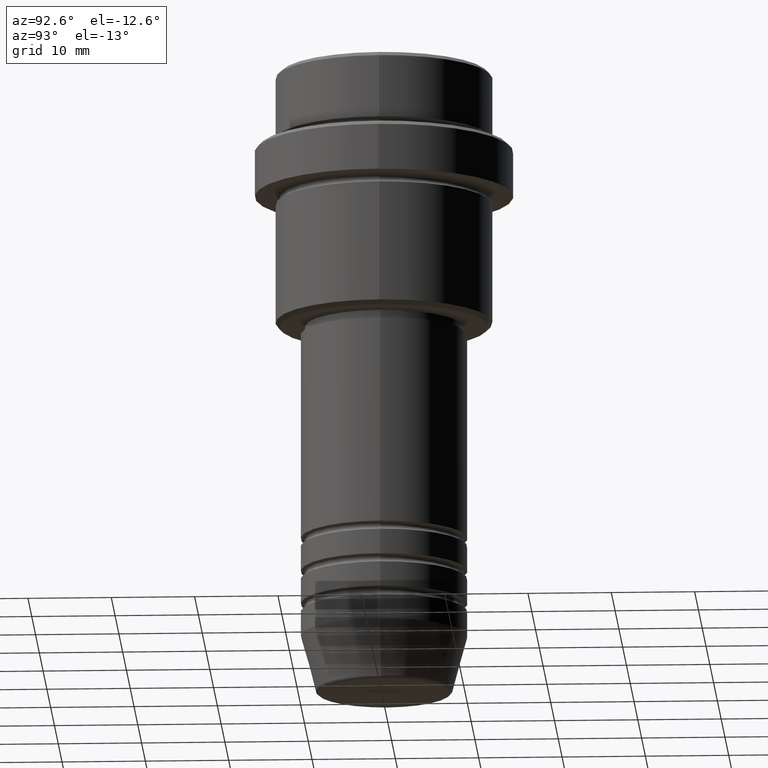
[diagram: clean part render]
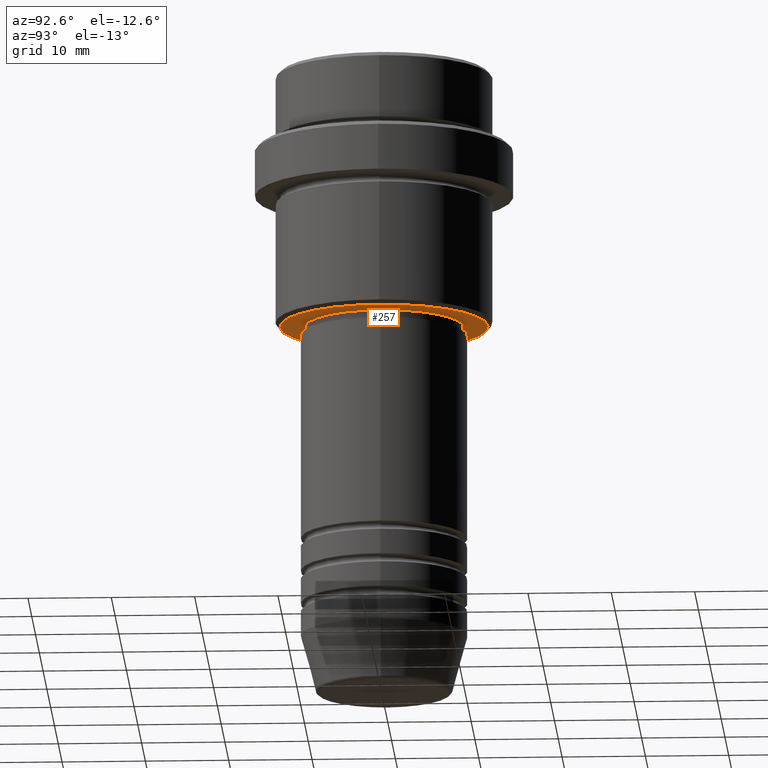
[diagram: same view with one face highlighted and labeled with its STEP entity id]
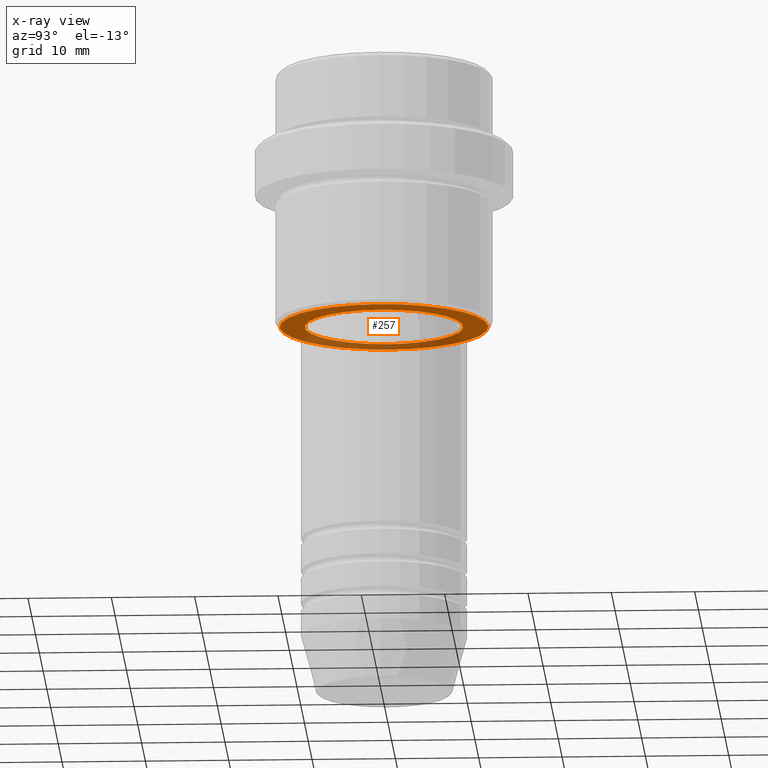
[diagram: x-ray of the same camera — body ghosted, the highlighted face saturated]
A machine part, auxiliary view. The second image highlights one B-rep face of the part: STEP entity #257.
The next image is the same camera in x-ray: the body ghosted, the highlighted face saturated — about 33% of this face is hidden behind the body in this view.
In plain terms, the highlighted planar face has unit normal (0, 0, -1).
Its self-contained STEP definition (entity closure, byte-faithful):
#67 = CARTESIAN_POINT ( 'NONE',  ( -9.499999999999996447, 1.163414459189985091E-15, -31.00000000000000000 ) ) ;
#124 = VERTEX_POINT ( 'NONE', #486 ) ;
#127 = DIRECTION ( 'NONE',  ( -1.000000000000000000, 0.000000000000000000, 0.000000000000000000 ) ) ;
#154 = ORIENTED_EDGE ( 'NONE', *, *, #1301, .T. ) ;
#257 = ADVANCED_FACE ( 'NONE', ( #863, #846 ), #1309, .T. ) ;
#283 = DIRECTION ( 'NONE',  ( -0.000000000000000000, -0.000000000000000000, 1.000000000000000000 ) ) ;
#314 = CARTESIAN_POINT ( 'NONE',  ( -12.50000000000001066, 1.561424668912876097E-15, -31.00000000000000000 ) ) ;
#328 = CARTESIAN_POINT ( 'NONE',  ( 0.000000000000000000, 13.00000000000000000, -31.00000000000000000 ) ) ;
#342 = CARTESIAN_POINT ( 'NONE',  ( 0.000000000000000000, 0.000000000000000000, -31.00000000000000000 ) ) ;
#414 = DIRECTION ( 'NONE',  ( -1.000000000000000000, 0.000000000000000000, -0.000000000000000000 ) ) ;
#453 = DIRECTION ( 'NONE',  ( -0.000000000000000000, -0.000000000000000000, 1.000000000000000000 ) ) ;
#459 = ORIENTED_EDGE ( 'NONE', *, *, #948, .T. ) ;
#480 = CARTESIAN_POINT ( 'NONE',  ( 12.50000000000001066, 0.000000000000000000, -31.00000000000000000 ) ) ;
#486 = CARTESIAN_POINT ( 'NONE',  ( 9.499999999999996447, 0.000000000000000000, -31.00000000000000000 ) ) ;
#528 = CIRCLE ( 'NONE', #788, 9.499999999999996447 ) ;
#529 = VERTEX_POINT ( 'NONE', #67 ) ;
#555 = CIRCLE ( 'NONE', #1085, 12.50000000000001066 ) ;
#563 = DIRECTION ( 'NONE',  ( 0.000000000000000000, 0.000000000000000000, -1.000000000000000000 ) ) ;
#572 = CIRCLE ( 'NONE', #1387, 9.499999999999996447 ) ;
#579 = CARTESIAN_POINT ( 'NONE',  ( 0.000000000000000000, 0.000000000000000000, -31.00000000000000000 ) ) ;
#645 = CARTESIAN_POINT ( 'NONE',  ( 0.000000000000000000, 0.000000000000000000, -31.00000000000000000 ) ) ;
#732 = DIRECTION ( 'NONE',  ( 0.000000000000000000, 0.000000000000000000, -1.000000000000000000 ) ) ;
#777 = DIRECTION ( 'NONE',  ( -1.000000000000000000, 0.000000000000000000, 0.000000000000000000 ) ) ;
#778 = DIRECTION ( 'NONE',  ( 1.000000000000000000, 0.000000000000000000, 0.000000000000000000 ) ) ;
#784 = EDGE_CURVE ( 'NONE', #1183, #1021, #835, .T. ) ;
#788 = AXIS2_PLACEMENT_3D ( 'NONE', #579, #283, #905 ) ;
#800 = EDGE_LOOP ( 'NONE', ( #154, #1232 ) ) ;
#801 = EDGE_CURVE ( 'NONE', #124, #529, #572, .T. ) ;
#835 = CIRCLE ( 'NONE', #1014, 12.50000000000001066 ) ;
#846 = FACE_BOUND ( 'NONE', #1156, .T. ) ;
#863 = FACE_OUTER_BOUND ( 'NONE', #800, .T. ) ;
#866 = CARTESIAN_POINT ( 'NONE',  ( 0.000000000000000000, 0.000000000000000000, -31.00000000000000000 ) ) ;
#870 = AXIS2_PLACEMENT_3D ( 'NONE', #328, #732, #414 ) ;
#905 = DIRECTION ( 'NONE',  ( 1.000000000000000000, 0.000000000000000000, 0.000000000000000000 ) ) ;
#948 = EDGE_CURVE ( 'NONE', #529, #124, #528, .T. ) ;
#983 = ORIENTED_EDGE ( 'NONE', *, *, #801, .T. ) ;
#1014 = AXIS2_PLACEMENT_3D ( 'NONE', #866, #563, #127 ) ;
#1021 = VERTEX_POINT ( 'NONE', #480 ) ;
#1085 = AXIS2_PLACEMENT_3D ( 'NONE', #645, #1093, #777 ) ;
#1093 = DIRECTION ( 'NONE',  ( 0.000000000000000000, 0.000000000000000000, -1.000000000000000000 ) ) ;
#1156 = EDGE_LOOP ( 'NONE', ( #983, #459 ) ) ;
#1183 = VERTEX_POINT ( 'NONE', #314 ) ;
#1232 = ORIENTED_EDGE ( 'NONE', *, *, #784, .T. ) ;
#1301 = EDGE_CURVE ( 'NONE', #1021, #1183, #555, .T. ) ;
#1309 = PLANE ( 'NONE',  #870 ) ;
#1387 = AXIS2_PLACEMENT_3D ( 'NONE', #342, #453, #778 ) ;